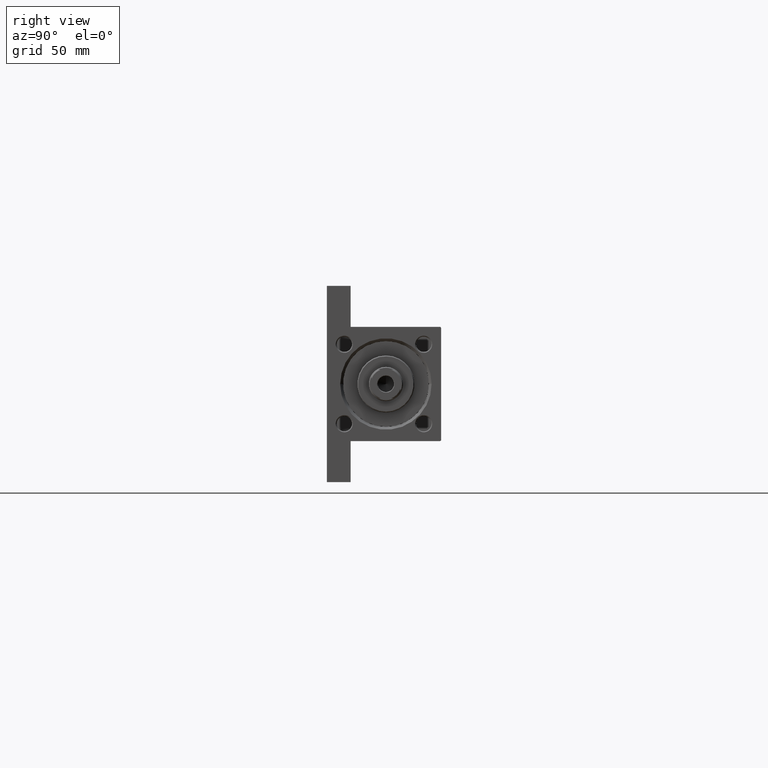
[diagram: clean part render]
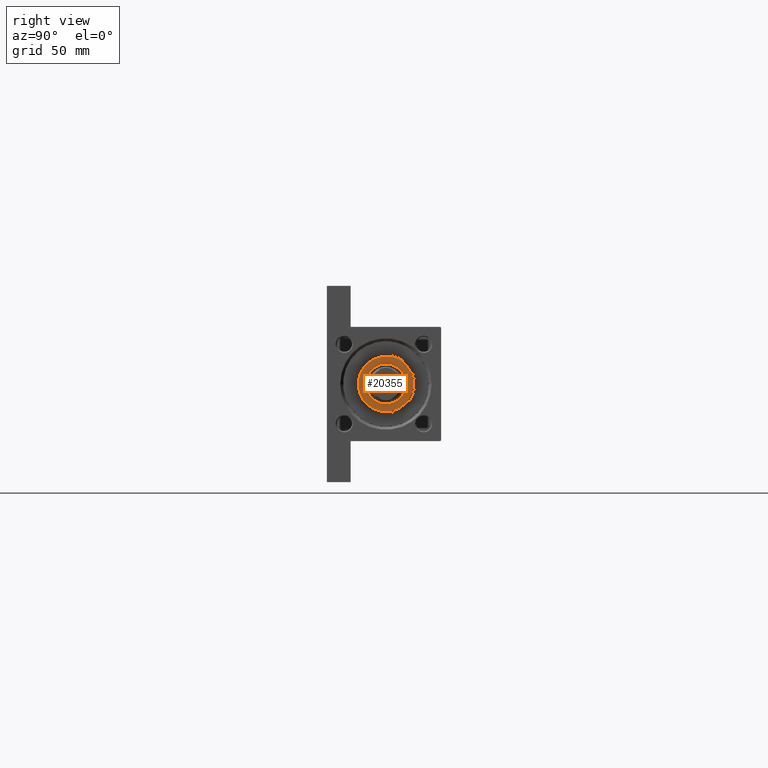
[diagram: same view with one face highlighted and labeled with its STEP entity id]
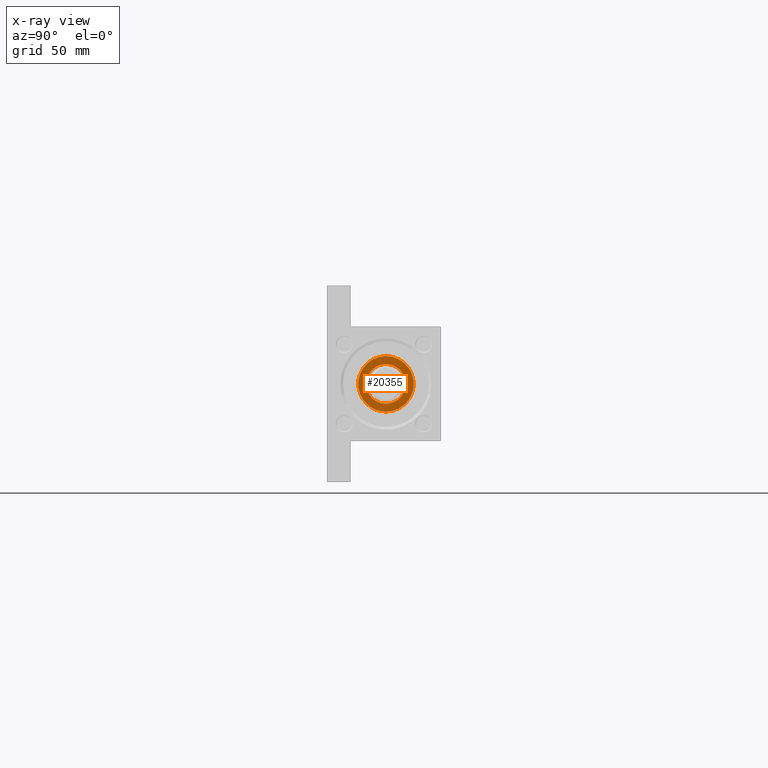
[diagram: x-ray of the same camera — body ghosted, the highlighted face saturated]
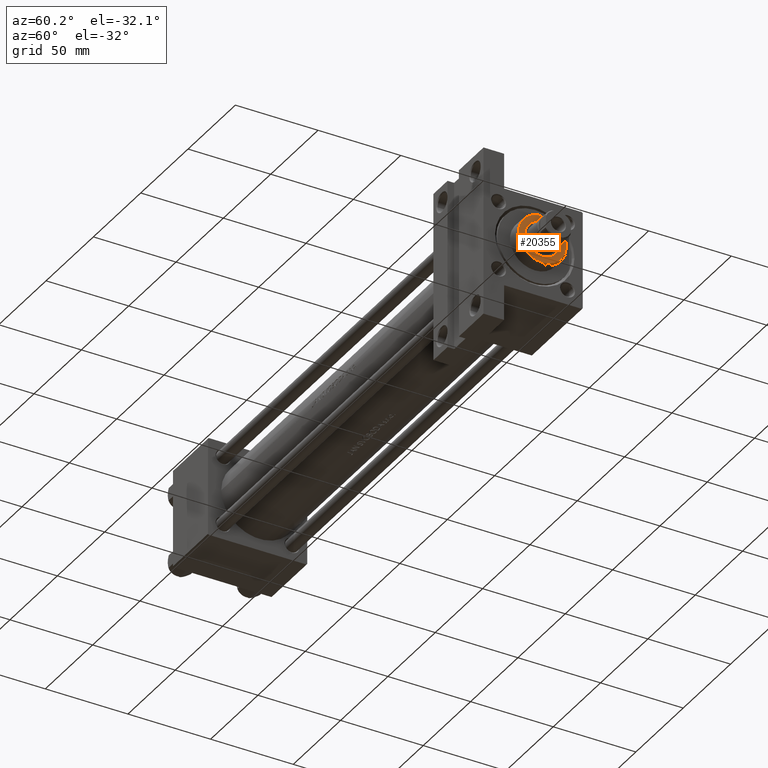
[diagram: same view with one face highlighted and labeled with its STEP entity id]
A machine part, right view. The second image highlights one B-rep face of the part: STEP entity #20355.
The next image is the same camera in x-ray: the body ghosted, the highlighted face saturated — about 0% of this face is hidden behind the body in this view.
A second angle (auxiliary view) of the same face is appended — the face is thin or edge-on in the first view.
In plain terms, the highlighted planar face has unit normal (1, 0, 0).
Its self-contained STEP definition (entity closure, byte-faithful):
#2 = ORIENTED_EDGE ( 'NONE', *, *, #7501, .F. ) ;
#594 = DIRECTION ( 'NONE',  ( 1.000000000000000000, 0.000000000000000000, 0.000000000000000000 ) ) ;
#772 = DIRECTION ( 'NONE',  ( 1.000000000000000000, 0.000000000000000000, -0.000000000000000000 ) ) ;
#1203 = CARTESIAN_POINT ( 'NONE',  ( 0.000000000000000000, 0.000000000000000000, 36.69999999999999574 ) ) ;
#2872 = CIRCLE ( 'NONE', #6004, 10.50000000000000000 ) ;
#3215 = CIRCLE ( 'NONE', #30757, 14.50000000000001776 ) ;
#4229 = FACE_BOUND ( 'NONE', #34078, .T. ) ;
#6004 = AXIS2_PLACEMENT_3D ( 'NONE', #1203, #17203, #32266 ) ;
#7208 = CIRCLE ( 'NONE', #18209, 14.50000000000001776 ) ;
#7501 = EDGE_CURVE ( 'NONE', #17686, #40901, #31911, .T. ) ;
#8156 = FACE_OUTER_BOUND ( 'NONE', #12761, .T. ) ;
#12253 = CARTESIAN_POINT ( 'NONE',  ( 0.000000000000000000, 0.000000000000000000, 36.69999999999999574 ) ) ;
#12761 = EDGE_LOOP ( 'NONE', ( #36998, #26624 ) ) ;
#15236 = CARTESIAN_POINT ( 'NONE',  ( 0.000000000000000000, 0.000000000000000000, 36.69999999999999574 ) ) ;
#16384 = EDGE_CURVE ( 'NONE', #40901, #17686, #2872, .T. ) ;
#17203 = DIRECTION ( 'NONE',  ( 0.000000000000000000, 0.000000000000000000, 1.000000000000000000 ) ) ;
#17686 = VERTEX_POINT ( 'NONE', #41062 ) ;
#18209 = AXIS2_PLACEMENT_3D ( 'NONE', #15236, #31022, #19902 ) ;
#19902 = DIRECTION ( 'NONE',  ( 1.000000000000000000, 0.000000000000000000, 0.000000000000000000 ) ) ;
#20355 = ADVANCED_FACE ( 'NONE', ( #4229, #8156 ), #23205, .T. ) ;
#22707 = ORIENTED_EDGE ( 'NONE', *, *, #16384, .F. ) ;
#22765 = CARTESIAN_POINT ( 'NONE',  ( 0.000000000000000000, 0.000000000000000000, 36.69999999999999574 ) ) ;
#23205 = PLANE ( 'NONE',  #27284 ) ;
#23501 = DIRECTION ( 'NONE',  ( 0.000000000000000000, 0.000000000000000000, 1.000000000000000000 ) ) ;
#26624 = ORIENTED_EDGE ( 'NONE', *, *, #30884, .T. ) ;
#27193 = CARTESIAN_POINT ( 'NONE',  ( 10.50000000000000000, 0.000000000000000000, 36.69999999999999574 ) ) ;
#27284 = AXIS2_PLACEMENT_3D ( 'NONE', #34792, #38252, #772 ) ;
#30300 = AXIS2_PLACEMENT_3D ( 'NONE', #22765, #23501, #594 ) ;
#30757 = AXIS2_PLACEMENT_3D ( 'NONE', #12253, #31734, #42582 ) ;
#30884 = EDGE_CURVE ( 'NONE', #47382, #35948, #3215, .T. ) ;
#31022 = DIRECTION ( 'NONE',  ( 0.000000000000000000, 0.000000000000000000, 1.000000000000000000 ) ) ;
#31734 = DIRECTION ( 'NONE',  ( 0.000000000000000000, 0.000000000000000000, 1.000000000000000000 ) ) ;
#31845 = CARTESIAN_POINT ( 'NONE',  ( 14.50000000000001776, 1.806354028742346985E-15, 36.69999999999999574 ) ) ;
#31911 = CIRCLE ( 'NONE', #30300, 10.50000000000000000 ) ;
#32266 = DIRECTION ( 'NONE',  ( 1.000000000000000000, 0.000000000000000000, 0.000000000000000000 ) ) ;
#34078 = EDGE_LOOP ( 'NONE', ( #22707, #2 ) ) ;
#34792 = CARTESIAN_POINT ( 'NONE',  ( 0.000000000000000000, 0.000000000000000000, 36.69999999999999574 ) ) ;
#35948 = VERTEX_POINT ( 'NONE', #36063 ) ;
#36063 = CARTESIAN_POINT ( 'NONE',  ( -14.50000000000001776, 0.000000000000000000, 36.69999999999999574 ) ) ;
#36444 = EDGE_CURVE ( 'NONE', #35948, #47382, #7208, .T. ) ;
#36998 = ORIENTED_EDGE ( 'NONE', *, *, #36444, .T. ) ;
#38252 = DIRECTION ( 'NONE',  ( 0.000000000000000000, 0.000000000000000000, 1.000000000000000000 ) ) ;
#40901 = VERTEX_POINT ( 'NONE', #27193 ) ;
#41062 = CARTESIAN_POINT ( 'NONE',  ( -10.50000000000000000, 1.285879139104720831E-15, 36.69999999999999574 ) ) ;
#42582 = DIRECTION ( 'NONE',  ( 1.000000000000000000, 0.000000000000000000, 0.000000000000000000 ) ) ;
#47382 = VERTEX_POINT ( 'NONE', #31845 ) ;